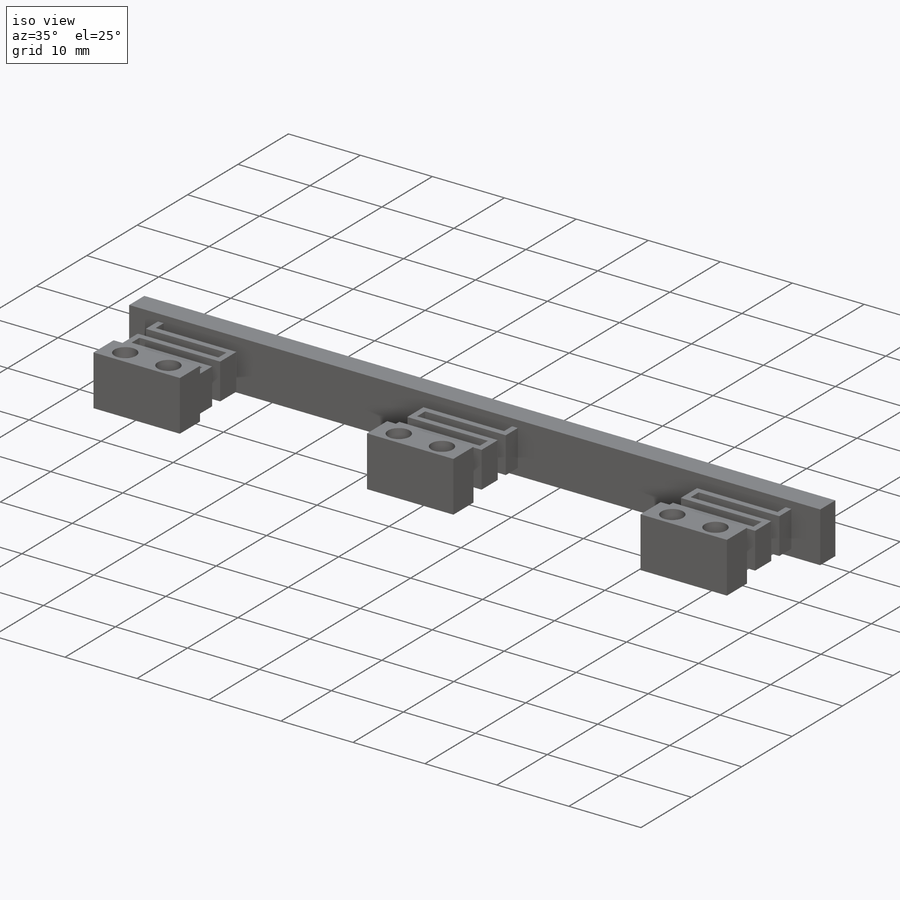
[diagram: iso view]
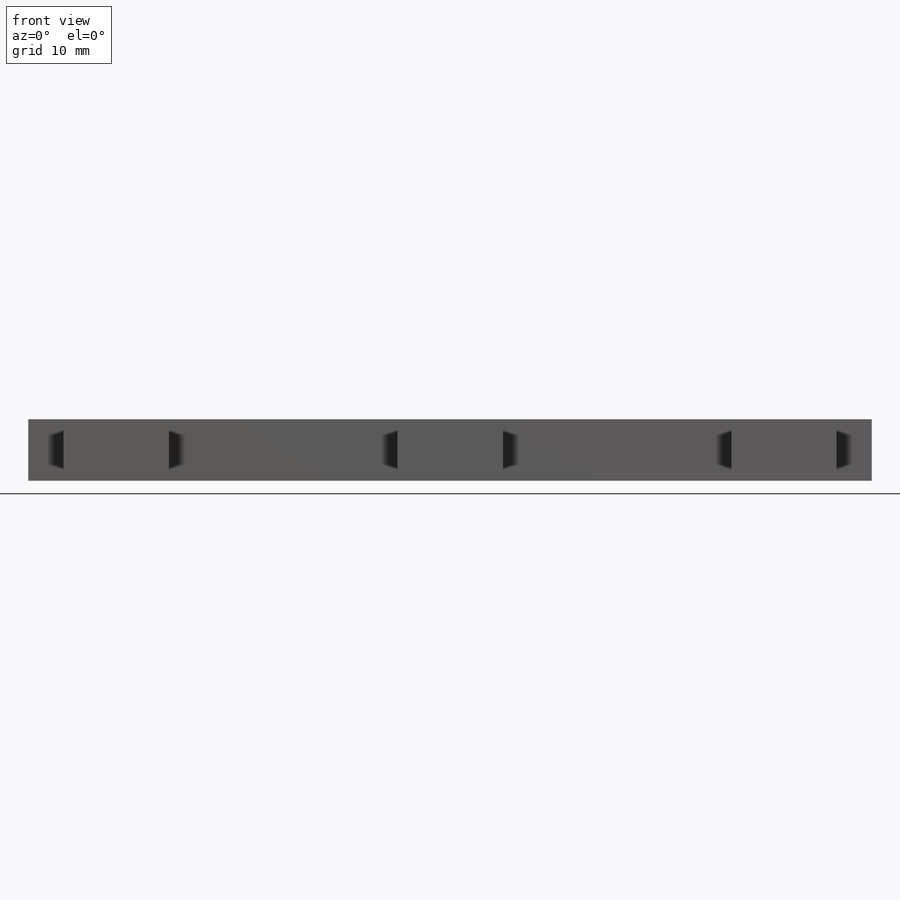
[diagram: front view]
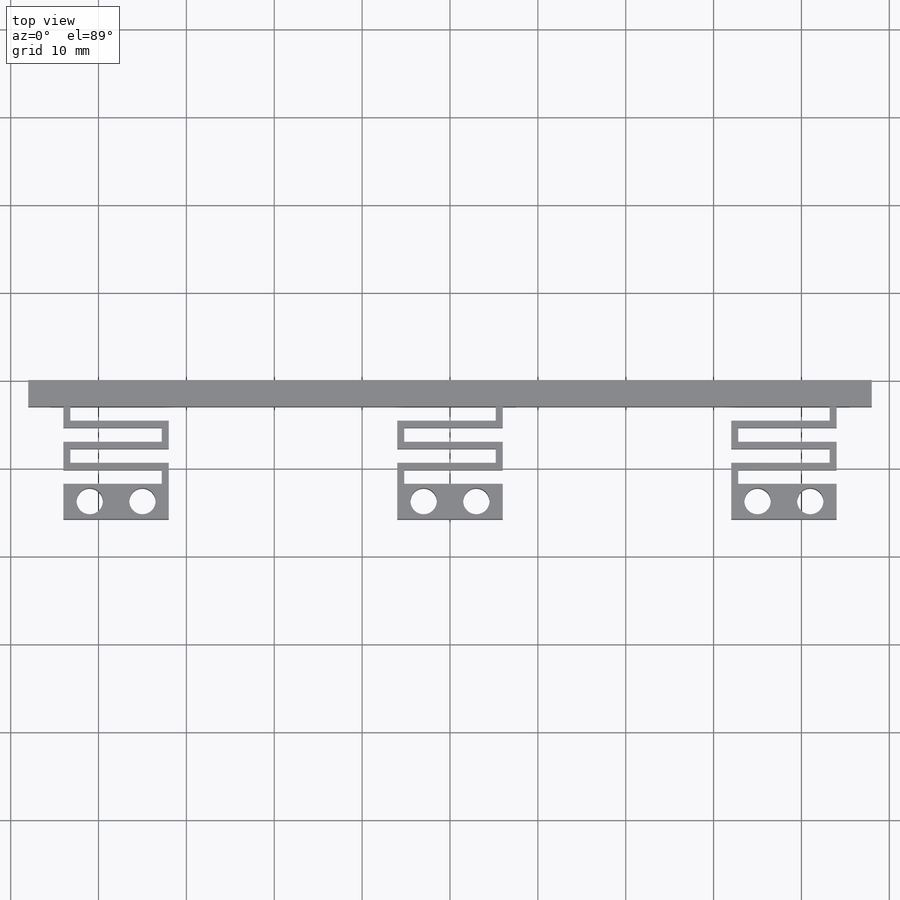
[diagram: top view]
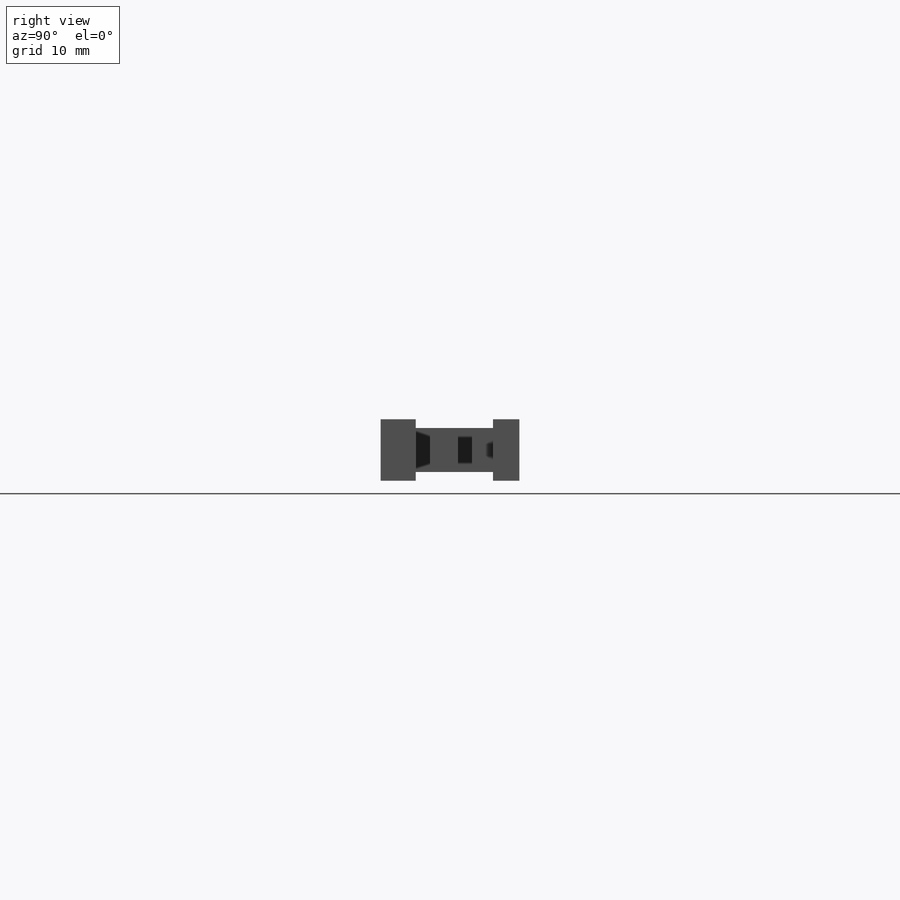
[diagram: right view]
SOLIDWORKS PART (.sldprt)
format: sldprt  version: not decoded by parser v0  size: 349,184 bytes
history: native  units: mm
features: sketch x4, extrude x2, cut_extrude x2, material x1 (+12 scaffold rows collapsed)
feature tree (21):
  scaffold x12  (default folders/planes/origin — collapsed)
  material  "재질 <지정안함>"
  sketch  "스케치1"  dims[D1=96.0mm D2=7.0mm D3=3.5mm D4=48.0mm]
  extrude  "보스-돌출1"  Depth=3mm
  sketch  "스케치2"  dims[D1=38.0mm D2=38.0mm D3=6.0mm D4=6.0mm D5=6.0mm D6=6.0mm D7=0.8mm D8=0.8mm D9=0.8mm D10=0.8mm D11=0.8mm D12=0.8mm D13=1.6mm D14=0.8mm D15=1.6mm D16=0.8mm D17=1.6mm D18=0.8mm D19=1.6mm D20=4.0mm D21=6.0mm D22=6.0mm]
  extrude  "보스-돌출2"  Depth=7mm
  sketch  "스케치3"  dims[D9=~0.884213mm D1=38.0mm D2=38.0mm D3=3.0mm D4=3.0mm D5=3.0mm D6=3.0mm D7=3.0mm D8=3.0mm]
  cut_extrude  "컷-돌출1"  Depth=10mm
  sketch  "스케치4"  dims[c1.D1=0.0mm c1.D2=0.0mm c1.D3=1.0mm c1.D4=90.0deg c2.D3=1.0mm]
  cut_extrude  "컷-돌출2"  Depth=107mm
decode coverage: 8 of 8 modeling features carry decoded parameters
note: ~ marks probable driven/reference dimensions
note: suppression state not decoded; provenance and decode notes live in map.json
